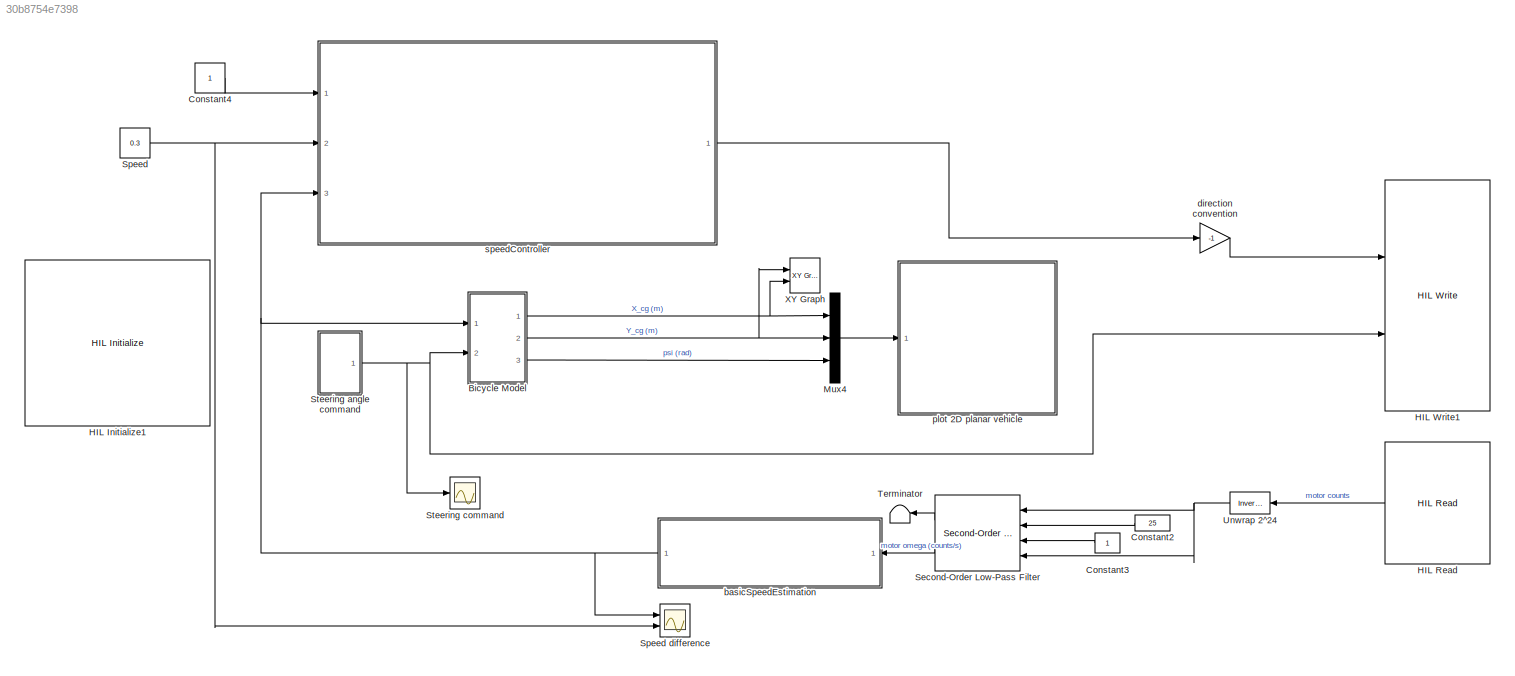
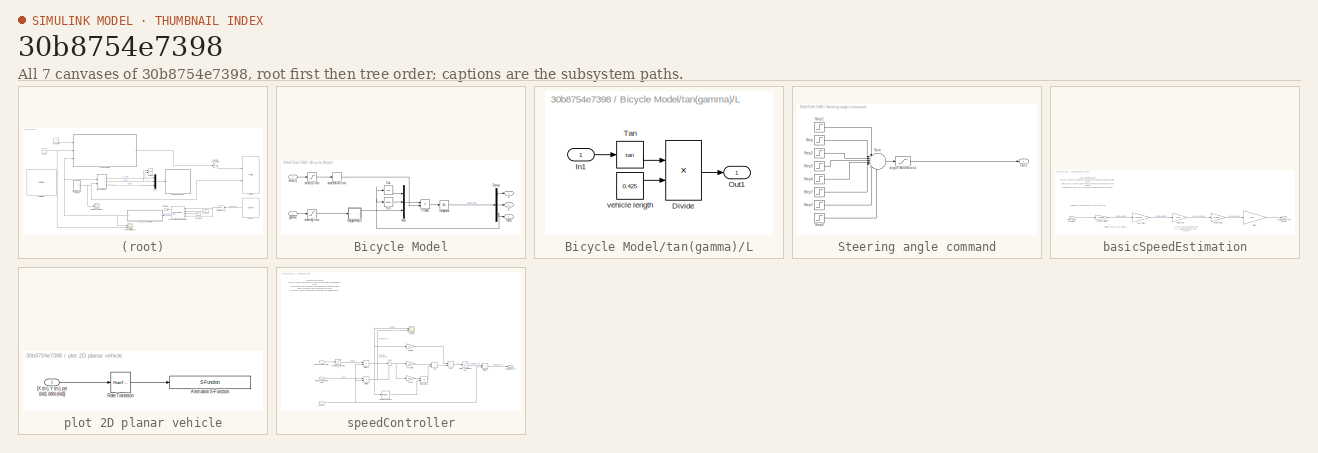
[diagram: thumbnail index - all 7 canvases of the model, root first then tree order]
MODEL slx_30b8754e7398
KIND model
CONFIG AbsTol = auto
CONFIG EnableMultiTasking = on
CONFIG FixedStep = 1/30
CONFIG MaxStep = auto
CONFIG MinStep = auto
CONFIG RelTol = 1e-3
CONFIG SampleTimeConstraint = Unconstrained
CONFIG SolverName = ode1
CONFIG StartTime = 0.0
CONFIG StopTime = inf
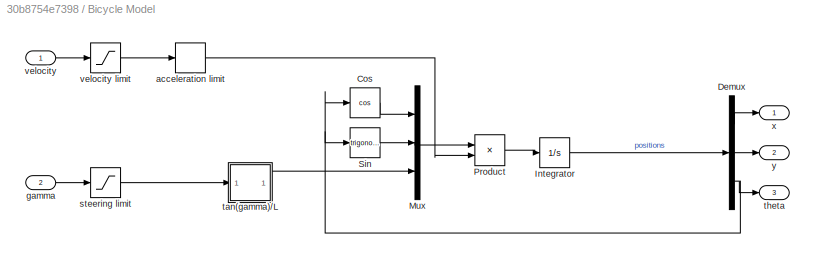
BLOCK [SubSystem] Bicycle Model
  Ports = [2, 3]
  RequestExecContextInheritance = off
BLOCK [Trigonometry] Bicycle Model/Cos
  Operator = cos
  Ports = [1, 1]
BLOCK [Demux] Bicycle Model/Demux
  Outputs = 3
  Ports = [1, 3]
BLOCK [Integrator] Bicycle Model/Integrator
  InitialCondition = x0
  Ports = [1, 1]
BLOCK [Mux] Bicycle Model/Mux
  DisplayOption = bar
  Inputs = 3
  Ports = [3, 1]
BLOCK [Product] Bicycle Model/Product
  Ports = [2, 1]
BLOCK [Trigonometry] Bicycle Model/Sin
  Ports = [1, 1]
BLOCK [RateLimiter] Bicycle Model/acceleration limit
  FallingSlewLimit = -2
  RisingSlewLimit = 2
  SampleTimeMode = inherited
BLOCK [Inport] Bicycle Model/gamma
  Port = 2
BLOCK [Saturate] Bicycle Model/steering limit
  LowerLimit = -1
  UpperLimit = 1
BLOCK [SubSystem] Bicycle Model/tan(gamma)//L
  Ports = [1, 1]
  RequestExecContextInheritance = off
BLOCK [Product] Bicycle Model/tan(gamma)//L/Divide
  Inputs = */
  Ports = [2, 1]
BLOCK [Inport] Bicycle Model/tan(gamma)//L/In1
BLOCK [Outport] Bicycle Model/tan(gamma)//L/Out1
BLOCK [Trigonometry] Bicycle Model/tan(gamma)//L/Tan
  Operator = tan
  Ports = [1, 1]
BLOCK [Constant] Bicycle Model/tan(gamma)//L/vehicle length
  Value = 0.425
BLOCK [Outport] Bicycle Model/theta
  Port = 3
BLOCK [Inport] Bicycle Model/velocity
BLOCK [Saturate] Bicycle Model/velocity limit
  LowerLimit = -5
  UpperLimit = 5
BLOCK [Outport] Bicycle Model/x
BLOCK [Outport] Bicycle Model/y
  Port = 2
BLOCK [Constant] Constant2
  Value = 25
BLOCK [Constant] Constant3
BLOCK [Constant] Constant4
  VectorParams1D = off
BLOCK [Reference] HIL Initialize1  REF=quarc_library/Data Acquisition/Generic/Configuration/HIL Initialize
  AttributesFormatString = %<object_name> (%<board_type>-%<board_number>)
  Ports = []
  SourceBlock = quarc_library/Data Acquisition/Generic/Configuration/HIL Initialize
  SourceProductName = QUARC Targets
  SourceType = HIL Initialize
  UserDataPersistent = on
BLOCK [Reference] HIL Read  REF=quarc_library/Data Acquisition/Generic/Immediate I//O/HIL Read
  AttributesFormatString = (%<object_name>)
  Ports = [0, 1]
  SourceBlock = quarc_library/Data Acquisition/Generic/Immediate I//O/HIL Read
  SourceProductName = QUARC Targets
  SourceType = HIL Read
  UserDataPersistent = on
BLOCK [Reference] HIL Write1  REF=quarc_library/Data Acquisition/Generic/Immediate I//O/HIL Write
  AttributesFormatString = (%<object_name>)
  Ports = [2]
  SourceBlock = quarc_library/Data Acquisition/Generic/Immediate I//O/HIL Write
  SourceProductName = QUARC Targets
  SourceType = HIL Write
  UserDataPersistent = on
BLOCK [Mux] Mux4
  DisplayOption = bar
  Inputs = 3
  Ports = [3, 1]
BLOCK [Reference] Second-Order Low-Pass Filter  REF=quarc_library/Continuous/Second-Order
Low-Pass Filter
  Ports = [4, 2]
  SourceBlock = quarc_library/Continuous/Second-Order\nLow-Pass Filter
  SourceProductName = QUARC Targets
  SourceType = Second-Order Low-Pass Filter
BLOCK [Constant] Speed
  Value = 0.3
BLOCK [Scope] Speed difference
  Floating = off
  NumInputPorts = 2
  Ports = [2]
  ScopeSpecificationString = Simulink.scopes.TimeScopeBlockCfg('CurrentConfiguration', extmgr.ConfigurationSet(extmgr.Configuration('Core','General UI',true),extmgr.Configuration('Core','Source UI',true),extmgr.Configuration('Sources','WiredSimulink',true,'DataLoggingVariableName','ScopeData1'),extmgr.Configuration('Visuals','Time Domain',true,'SerializedDisplays',{struct('MinYLimReal','-0.03894','MaxYLimReal','0.35048','YLab...<+1439ch>
BLOCK [SubSystem] Steering angle command
  Ports = [0, 1]
  RequestExecContextInheritance = off
BLOCK [Outport] Steering angle command/Out1
BLOCK [Step] Steering angle command/Step
  After = 0.37
  Time = 3
BLOCK [Step] Steering angle command/Step1
  After = -0.37
  Time = 2
BLOCK [Step] Steering angle command/Step2
  After = 0.37
  Time = 4.5
BLOCK [Step] Steering angle command/Step3
  After = -0.37
  Time = 5.5
BLOCK [Step] Steering angle command/Step4
  After = 0.37
  Time = 6.5
BLOCK [Step] Steering angle command/Step5
  After = -0.37
  Time = 9.1
BLOCK [Step] Steering angle command/Step6
  After = 0.37
  Time = 10.2
BLOCK [Step] Steering angle command/Step7
  After = -0.37
  Time = 7.5
BLOCK [Sum] Steering angle command/Sum
  Inputs = |++++++++
  Ports = [8, 1]
BLOCK [Saturate] Steering angle command/angle saturation1
  NameLocation = top
BLOCK [Scope] Steering command
  Floating = off
  NumInputPorts = 1
  Ports = [1]
  ScopeSpecificationString = Simulink.scopes.TimeScopeBlockCfg('CurrentConfiguration', extmgr.ConfigurationSet(extmgr.Configuration('Core','General UI',true),extmgr.Configuration('Core','Source UI',true),extmgr.Configuration('Sources','WiredSimulink',true,'DataLoggingVariableName','ScopeData1'),extmgr.Configuration('Visuals','Time Domain',true,'SerializedDisplays',{struct('MinYLimReal','-0.4625','MaxYLimReal','0.4625','YLabel...<+1404ch>
BLOCK [Terminator] Terminator
  NameLocation = top
BLOCK [Reference] Unwrap 2^24  REF=quarc_library/Discontinuities/Inverse
Modulus
  Ports = [1, 1]
  SourceBlock = quarc_library/Discontinuities/Inverse\nModulus
  SourceProductName = QUARC Targets
  SourceType = Inverse Modulus
BLOCK [Reference] XY Graph  REF=simulink/Sinks/XY Graph
  Ports = [2]
  SourceBlock = simulink/Sinks/XY Graph
  SourceProductBaseCode = SL
  SourceType = XY scope.
BLOCK [SubSystem] basicSpeedEstimation
  Ports = [1, 1]
  RequestExecContextInheritance = off
BLOCK [Gain] basicSpeedEstimation/Offset
  Gain = 0.87
BLOCK [Gain] basicSpeedEstimation/counts to rotations
  Gain = 1/720/4
BLOCK [Gain] basicSpeedEstimation/gear ratios
  Gain = (13*19)/(70*37)
BLOCK [Outport] basicSpeedEstimation/longitudinalCarSpeed (m//s)
  VectorParamsAs1DForOutWhenUnconnected = off
BLOCK [Inport] basicSpeedEstimation/motorSpeed (counts//s)
BLOCK [Gain] basicSpeedEstimation/rot//s to rad//s
  Gain = 2*pi
BLOCK [Gain] basicSpeedEstimation/wheel radius
  Gain = 0.0342
BLOCK [Gain] direction convention
  Gain = -1
  NameLocation = top
BLOCK [SubSystem] plot 2D planar vehicle
  Commented = on
  Ports = [1]
  RequestExecContextInheritance = off
BLOCK [S-Function] plot 2D planar vehicle/Animation S-Function
  EnableBusSupport = off
  FunctionName = sanim_XY_vehicle_viz
  Parameters = Config
  Ports = [1]
  SFcnIsStateOwnerBlock = off
  SFunctionDeploymentMode = off
BLOCK [RateTransition] plot 2D planar vehicle/Rate Transition
  Integrity = off
BLOCK [Inport] plot 2D planar vehicle/[X (m), Y (m), psi (rad), delta (rad)]
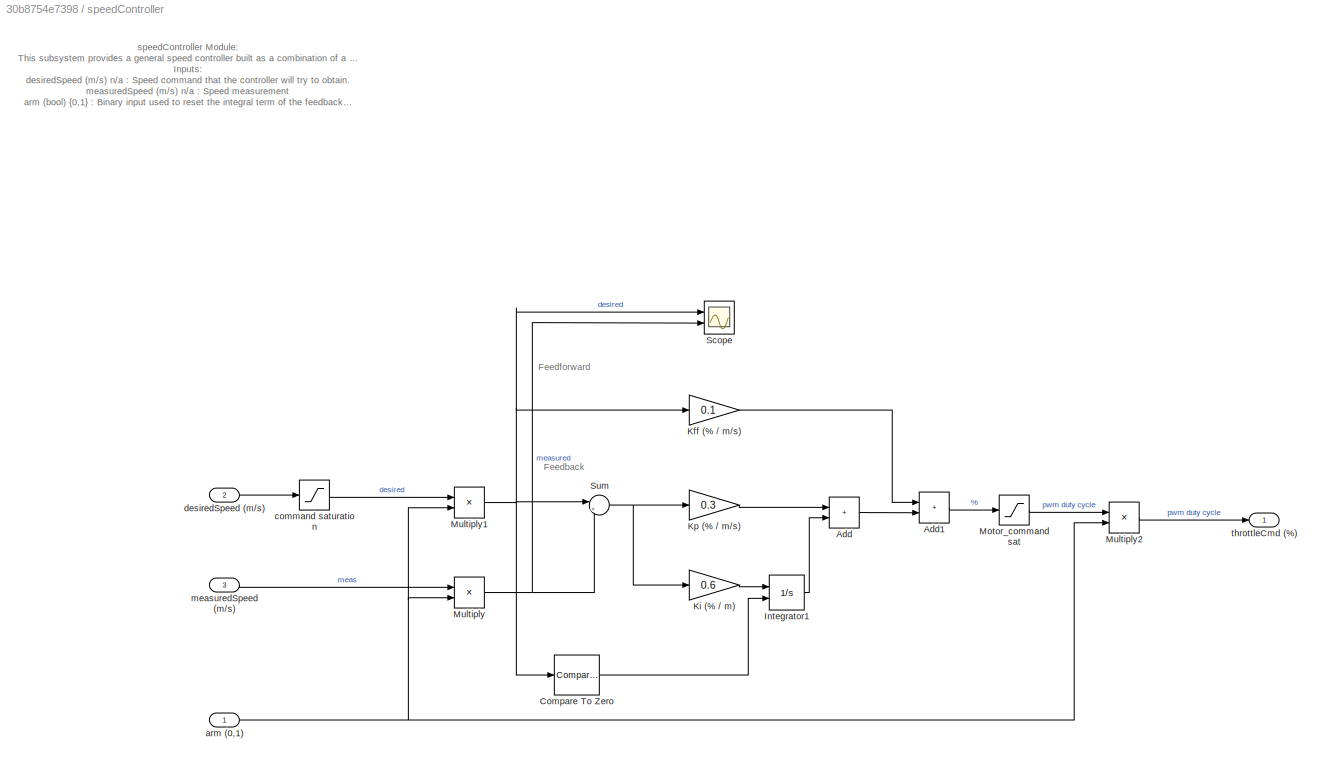
BLOCK [SubSystem] speedController
  Ports = [3, 1]
  RequestExecContextInheritance = off
BLOCK [Sum] speedController/Add
  IconShape = rectangular
  Ports = [2, 1]
BLOCK [Sum] speedController/Add1
  IconShape = rectangular
  Ports = [2, 1]
BLOCK [Reference] speedController/Compare To Zero  REF=simulink/Logic and Bit
Operations/Compare
To Zero
  Ports = [1, 1]
  SourceBlock = simulink/Logic and Bit\nOperations/Compare\nTo Zero
  SourceProductBaseCode = SL
  SourceType = Compare To Zero
BLOCK [Integrator] speedController/Integrator1
  ExternalReset = either
  LimitOutput = on
  LowerSaturationLimit = -0.1
  Ports = [2, 1]
  UpperSaturationLimit = 0.1
BLOCK [Gain] speedController/Kff (% // m//s)
  Gain = 0.1
BLOCK [Gain] speedController/Ki (% // m) 
  Gain = 0.6
BLOCK [Gain] speedController/Kp (% // m//s)
  Gain = 0.3
BLOCK [Saturate] speedController/Motor_command sat
  LinearizeAsGain = off
BLOCK [Product] speedController/Multiply
  Ports = [2, 1]
BLOCK [Product] speedController/Multiply1
  Ports = [2, 1]
BLOCK [Product] speedController/Multiply2
  Ports = [2, 1]
BLOCK [Scope] speedController/Scope
  Floating = off
  NumInputPorts = 2
  Ports = [2]
  ScopeSpecificationString = Simulink.scopes.TimeScopeBlockCfg('CurrentConfiguration', extmgr.ConfigurationSet(extmgr.Configuration('Core','General UI',true),extmgr.Configuration('Core','Source UI',true),extmgr.Configuration('Sources','WiredSimulink',true,'DataLoggingVariableName','ScopeData1'),extmgr.Configuration('Visuals','Time Domain',true,'SerializedDisplays',{struct('MinYLimReal','-2','MaxYLimReal','2','YLabelReal','m/s...<+1419ch>
BLOCK [Sum] speedController/Sum
  Inputs = |+-
  Ports = [2, 1]
BLOCK [Inport] speedController/arm (0,1)
BLOCK [Saturate] speedController/command saturation
BLOCK [Inport] speedController/desiredSpeed (m//s)
  Port = 2
BLOCK [Inport] speedController/measuredSpeed (m//s)
  Port = 3
BLOCK [Outport] speedController/throttleCmd (%)
  VectorParamsAs1DForOutWhenUnconnected = off
ANNOTATION basicSpeedEstimation: (Diff. pinion*pinion)/(Spur*Diff. spur)
ANNOTATION basicSpeedEstimation: speedEstimation Module: This subsystem converts the motor speed measurements in counts/s to a useful longitudinal car speed in m/s. Inputs: motorSpeed (counts/s) n/a : Drive motor speed measured using an encoder Outputs: longitudinalCarSpeed (m/s) n/a : The platform's longitudinal speed (along the front-rear axis direction)
ANNOTATION basicSpeedEstimation: Estimate car speed from motor encoder counts rate
ANNOTATION basicSpeedEstimation: v = 2*pi*r * omega (if omega is in rot/s) v = r * omega (if omega is in rad/s) r = 0.0342 m
ANNOTATION speedController: speedController Module: This subsystem provides a general speed controller built as a combination of a feedforward and feedback controllers. Inputs: desiredSpeed (m/s) n/a : Speed command that the controller will try to obtain. measuredSpeed (m/s) n/a : Speed measurement arm (bool) {0,1} : Binary input used to reset the integral term of the feedback controller Outputs: throttleCmd (%) n/a : Percen...<+289ch>
ANNOTATION speedController: Feedback
ANNOTATION speedController: Feedforward
LINE Bicycle Model/Cos:1 -> Bicycle Model/Mux:1
LINE Bicycle Model/Demux:1 -> Bicycle Model/x:1
LINE Bicycle Model/Demux:2 -> Bicycle Model/y:1
NET Bicycle Model/Demux:3 -> Bicycle Model/Cos:1, Bicycle Model/Sin:1, Bicycle Model/theta:1
LINE Bicycle Model/Integrator:1 -> Bicycle Model/Demux:1
LINE Bicycle Model/Mux:1 -> Bicycle Model/Product:1
LINE Bicycle Model/Product:1 -> Bicycle Model/Integrator:1
LINE Bicycle Model/Sin:1 -> Bicycle Model/Mux:2
LINE Bicycle Model/acceleration limit:1 -> Bicycle Model/Product:2
LINE Bicycle Model/gamma:1 -> Bicycle Model/steering limit:1
LINE Bicycle Model/steering limit:1 -> Bicycle Model/tan(gamma)//L:1
LINE Bicycle Model/tan(gamma)//L/Divide:1 -> Bicycle Model/tan(gamma)//L/Out1:1
LINE Bicycle Model/tan(gamma)//L/In1:1 -> Bicycle Model/tan(gamma)//L/Tan:1
LINE Bicycle Model/tan(gamma)//L/Tan:1 -> Bicycle Model/tan(gamma)//L/Divide:1
LINE Bicycle Model/tan(gamma)//L/vehicle length:1 -> Bicycle Model/tan(gamma)//L/Divide:2
LINE Bicycle Model/tan(gamma)//L:1 -> Bicycle Model/Mux:3
LINE Bicycle Model/velocity limit:1 -> Bicycle Model/acceleration limit:1
LINE Bicycle Model/velocity:1 -> Bicycle Model/velocity limit:1
NET Bicycle Model:1 -> Mux4:1, XY Graph:2
NET Bicycle Model:2 -> Mux4:2, XY Graph:1
LINE Bicycle Model:3 -> Mux4:3
LINE Constant2:1 -> Second-Order Low-Pass Filter:2
LINE Constant3:1 -> Second-Order Low-Pass Filter:3
LINE Constant4:1 -> speedController:1
LINE HIL Read:1 -> Unwrap 2^24:1
LINE Mux4:1 -> plot 2D planar vehicle:1
LINE Second-Order Low-Pass Filter:1 -> Terminator:1
LINE Second-Order Low-Pass Filter:2 -> basicSpeedEstimation:1
NET Speed:1 -> Speed difference:2, speedController:2
LINE Steering angle command/Step1:1 -> Steering angle command/Sum:1
LINE Steering angle command/Step2:1 -> Steering angle command/Sum:3
LINE Steering angle command/Step3:1 -> Steering angle command/Sum:4
LINE Steering angle command/Step4:1 -> Steering angle command/Sum:5
LINE Steering angle command/Step5:1 -> Steering angle command/Sum:7
LINE Steering angle command/Step6:1 -> Steering angle command/Sum:8
LINE Steering angle command/Step7:1 -> Steering angle command/Sum:6
LINE Steering angle command/Step:1 -> Steering angle command/Sum:2
LINE Steering angle command/Sum:1 -> Steering angle command/angle saturation1:1
LINE Steering angle command/angle saturation1:1 -> Steering angle command/Out1:1
NET Steering angle command:1 -> Bicycle Model:2, HIL Write1:2, Steering command:1
NET Unwrap 2^24:1 -> Second-Order Low-Pass Filter:1, Second-Order Low-Pass Filter:4
LINE basicSpeedEstimation/Offset:1 -> basicSpeedEstimation/longitudinalCarSpeed (m//s):1
LINE basicSpeedEstimation/counts to rotations:1 -> basicSpeedEstimation/gear ratios:1
LINE basicSpeedEstimation/gear ratios:1 -> basicSpeedEstimation/rot//s to rad//s:1
LINE basicSpeedEstimation/motorSpeed (counts//s):1 -> basicSpeedEstimation/counts to rotations:1
LINE basicSpeedEstimation/rot//s to rad//s:1 -> basicSpeedEstimation/wheel radius:1
LINE basicSpeedEstimation/wheel radius:1 -> basicSpeedEstimation/Offset:1
NET basicSpeedEstimation:1 -> Bicycle Model:1, Speed difference:1, speedController:3
LINE direction convention:1 -> HIL Write1:1
LINE plot 2D planar vehicle/Rate Transition:1 -> plot 2D planar vehicle/Animation S-Function:1
LINE plot 2D planar vehicle/[X (m), Y (m), psi (rad), delta (rad)]:1 -> plot 2D planar vehicle/Rate Transition:1
LINE speedController/Add1:1 -> speedController/Motor_command sat:1
LINE speedController/Add:1 -> speedController/Add1:2
LINE speedController/Compare To Zero:1 -> speedController/Integrator1:2
LINE speedController/Integrator1:1 -> speedController/Add:2
LINE speedController/Kff (% // m//s):1 -> speedController/Add1:1
LINE speedController/Ki (% // m) :1 -> speedController/Integrator1:1
LINE speedController/Kp (% // m//s):1 -> speedController/Add:1
LINE speedController/Motor_command sat:1 -> speedController/Multiply2:1
NET speedController/Multiply1:1 -> speedController/Compare To Zero:1, speedController/Kff (% // m//s):1, speedController/Scope:1, speedController/Sum:1
LINE speedController/Multiply2:1 -> speedController/throttleCmd (%):1
NET speedController/Multiply:1 -> speedController/Scope:2, speedController/Sum:2
NET speedController/Sum:1 -> speedController/Ki (% // m) :1, speedController/Kp (% // m//s):1
NET speedController/arm (0,1):1 -> speedController/Multiply1:2, speedController/Multiply2:2, speedController/Multiply:2
LINE speedController/command saturation:1 -> speedController/Multiply1:1
LINE speedController/desiredSpeed (m//s):1 -> speedController/command saturation:1
LINE speedController/measuredSpeed (m//s):1 -> speedController/Multiply:1
LINE speedController:1 -> direction convention:1
note: NET lines group one-source signal fan-out (src -> all destinations, sorted); 1:1 wires keep LINE
